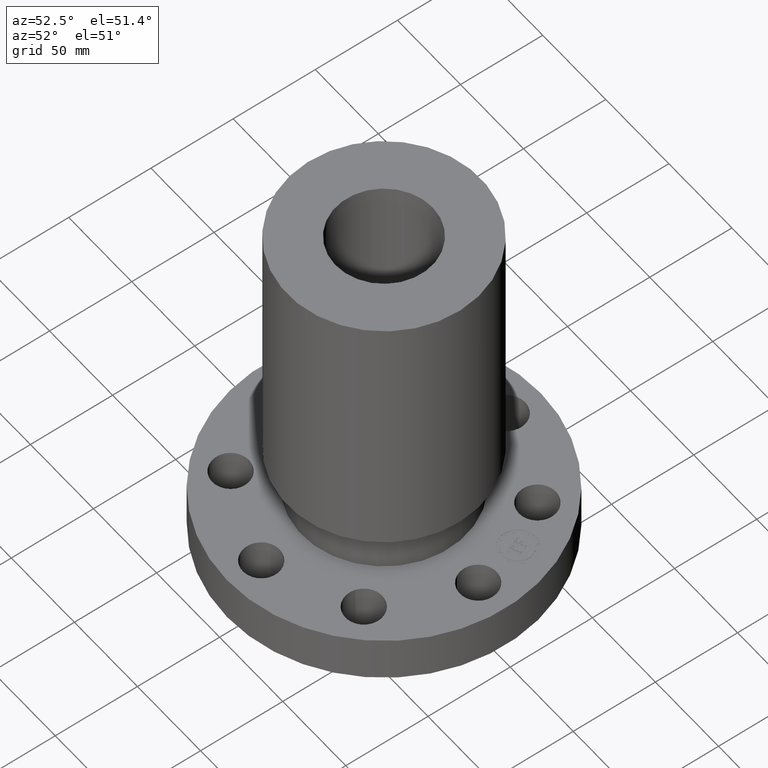
[diagram: clean part render]
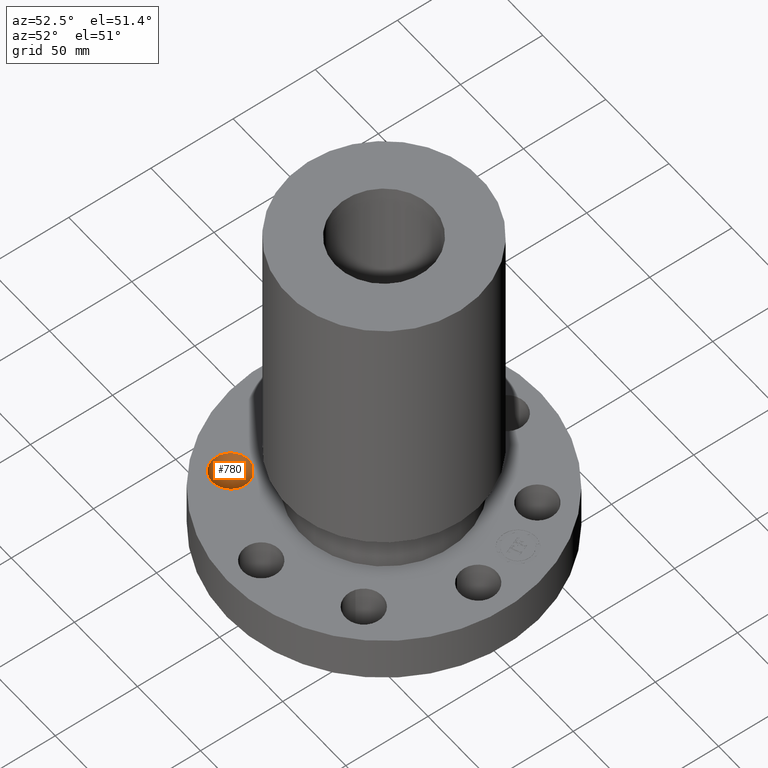
[diagram: same view with one face highlighted and labeled with its STEP entity id]
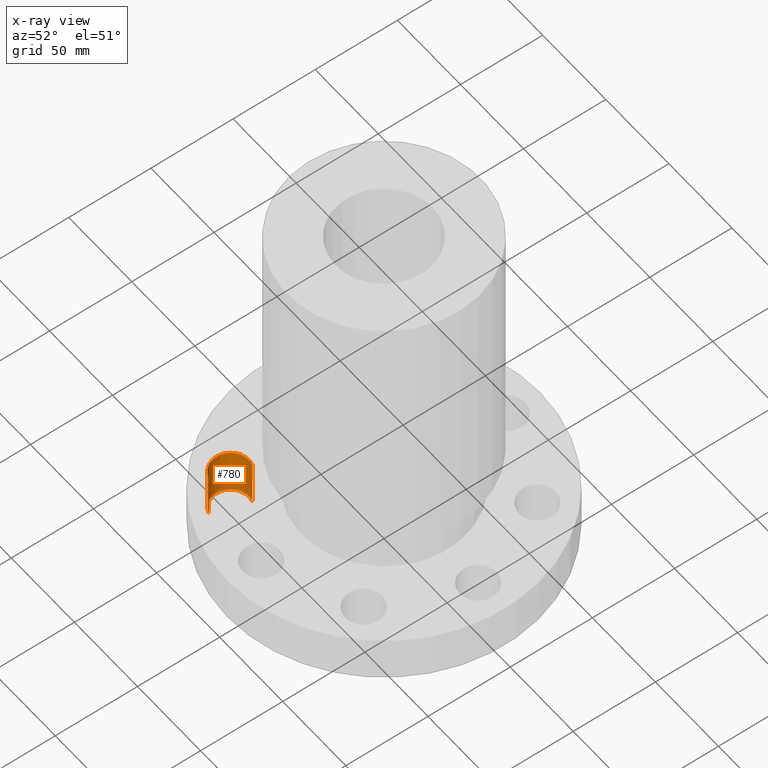
[diagram: x-ray of the same camera — body ghosted, the highlighted face saturated]
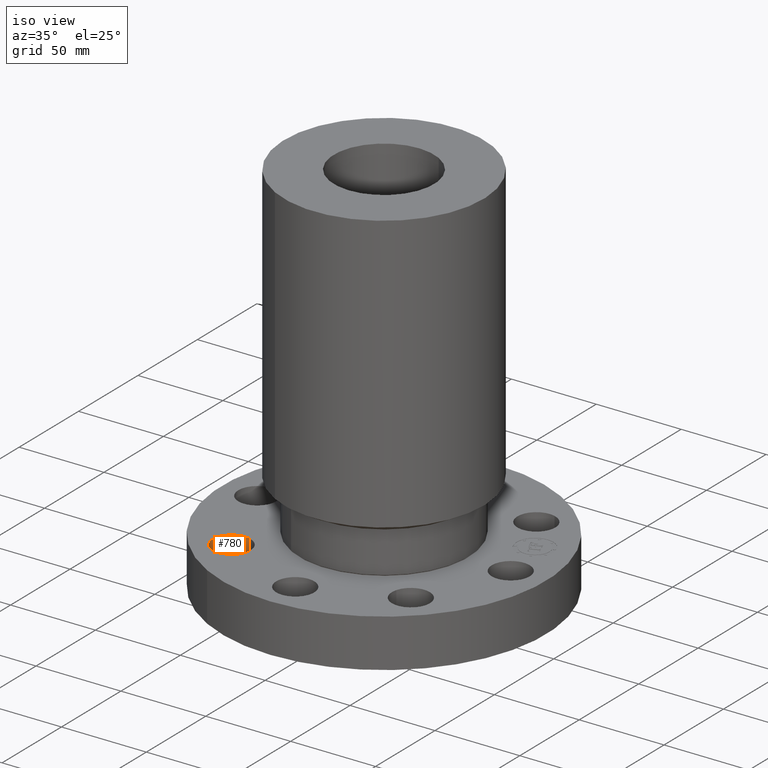
[diagram: same view with one face highlighted and labeled with its STEP entity id]
A machine part, auxiliary view. The second image highlights one B-rep face of the part: STEP entity #780.
The next image is the same camera in x-ray: the body ghosted, the highlighted face saturated — about 6% of this face is hidden behind the body in this view.
A second angle (iso view) of the same face is appended — the face is thin or edge-on in the first view.
In plain terms, the highlighted cylindrical surface (edge-blend (fillet) strip) has radius 11.176 mm, axis along (0, 0, 1).
Its self-contained STEP definition (entity closure, byte-faithful):
#163=AXIS2_PLACEMENT_3D('Circle Axis2P3D',#161,#162,$) ;
#753=AXIS2_PLACEMENT_3D('Cylinder Axis2P3D',#750,#751,#752) ;
#764=AXIS2_PLACEMENT_3D('Circle Axis2P3D',#762,#763,$) ;
#161=CARTESIAN_POINT('Axis2P3D Location',(-2.0788939367,-2.0788939367,0.)) ;
#165=CARTESIAN_POINT('Vertex',(-2.2027713304,-2.50109577389,0.)) ;
#167=CARTESIAN_POINT('Vertex',(-1.95501654299,-1.6566920995,0.)) ;
#750=CARTESIAN_POINT('Axis2P3D Location',(-2.0788939367,-2.0788939367,0.00393700787402)) ;
#755=CARTESIAN_POINT('Line Origine',(-1.95501654299,-1.6566920995,0.560000000002)) ;
#759=CARTESIAN_POINT('Vertex',(-1.95501654299,-1.6566920995,1.12)) ;
#762=CARTESIAN_POINT('Axis2P3D Location',(-2.0788939367,-2.0788939367,1.12)) ;
#766=CARTESIAN_POINT('Vertex',(-2.2027713304,-2.50109577389,1.12)) ;
#769=CARTESIAN_POINT('Line Origine',(-2.2027713304,-2.50109577389,0.560000000002)) ;
#162=DIRECTION('Axis2P3D Direction',(0.,0.,-0.0393700787402)) ;
#751=DIRECTION('Axis2P3D Direction',(0.,0.,0.0393700787402)) ;
#752=DIRECTION('Axis2P3D XDirection',(-0.0110842335096,-0.0377775444876,0.)) ;
#756=DIRECTION('Vector Direction',(0.,0.,0.0393700787402)) ;
#763=DIRECTION('Axis2P3D Direction',(0.,0.,0.0393700787402)) ;
#770=DIRECTION('Vector Direction',(0.,0.,0.0393700787402)) ;
#757=VECTOR('Line Direction',#756,0.0393700787402) ;
#771=VECTOR('Line Direction',#770,0.0393700787402) ;
#775=ORIENTED_EDGE('',*,*,#761,.F.) ;
#776=ORIENTED_EDGE('',*,*,#768,.F.) ;
#777=ORIENTED_EDGE('',*,*,#773,.T.) ;
#778=ORIENTED_EDGE('',*,*,#169,.T.) ;
#780=ADVANCED_FACE('PartBody',(#779),#754,.F.) ;
#164=CIRCLE('generated circle',#163,0.440000000002) ;
#765=CIRCLE('generated circle',#764,0.440000000002) ;
#754=CYLINDRICAL_SURFACE('generated cylinder',#753,0.440000000002) ;
#169=EDGE_CURVE('',#166,#168,#164,.T.) ;
#761=EDGE_CURVE('',#760,#168,#758,.F.) ;
#768=EDGE_CURVE('',#767,#760,#765,.F.) ;
#773=EDGE_CURVE('',#767,#166,#772,.F.) ;
#774=EDGE_LOOP('',(#775,#776,#777,#778)) ;
#779=FACE_OUTER_BOUND('',#774,.T.) ;
#758=LINE('Line',#755,#757) ;
#772=LINE('Line',#769,#771) ;
#166=VERTEX_POINT('',#165) ;
#168=VERTEX_POINT('',#167) ;
#760=VERTEX_POINT('',#759) ;
#767=VERTEX_POINT('',#766) ;